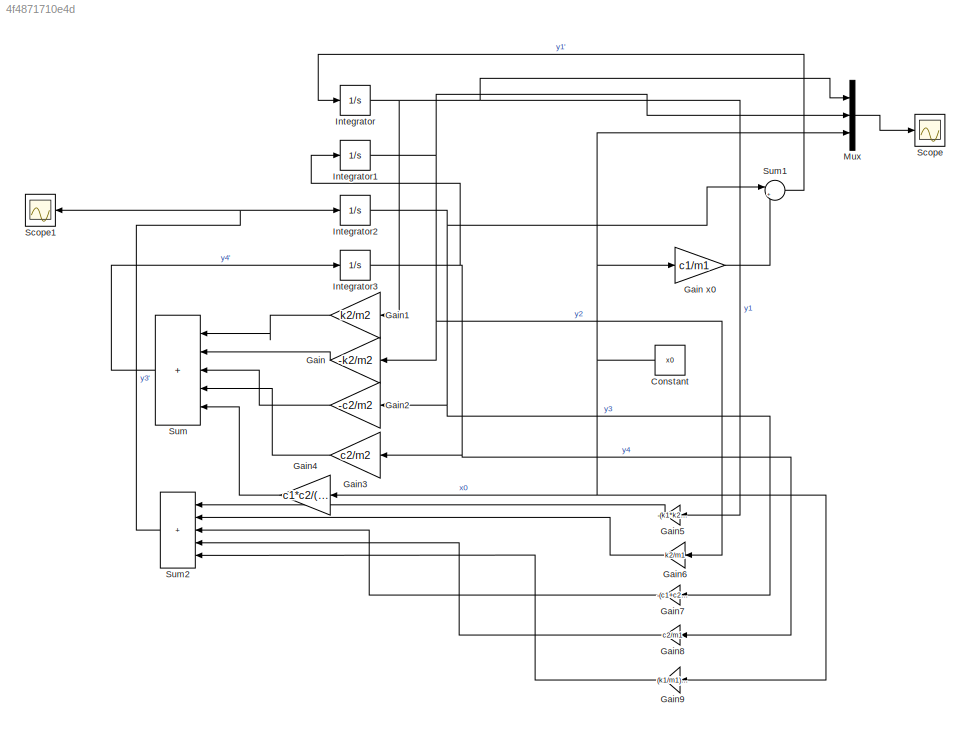
MODEL slx_4f4871710e4d
KIND model
CONFIG AbsTol = auto
CONFIG EnableMultiTasking = off
CONFIG FixedStep = auto
CONFIG MaxStep = auto
CONFIG MinStep = auto
CONFIG RelTol = 1e-3
CONFIG SampleTimeConstraint = Unconstrained
CONFIG SolverName = VariableStepAuto
CONFIG StartTime = 0.0
CONFIG StopTime = 10.0
BLOCK [Constant] Constant
  Value = x0
BLOCK [Gain] Gain
  Gain = -k2/m2
BLOCK [Gain] Gain x0
  Gain = c1/m1
BLOCK [Gain] Gain1
  Gain = k2/m2
BLOCK [Gain] Gain2
  Gain = -c2/m2
BLOCK [Gain] Gain3
  Gain = c2/m2
BLOCK [Gain] Gain4
  Gain = c1*c2/(m1*m2)
BLOCK [Gain] Gain5
  Gain = -(k1*k2)/m1
BLOCK [Gain] Gain6
  Gain = k2/m1
BLOCK [Gain] Gain7
  Gain = -(c1+c2)/m1
BLOCK [Gain] Gain8
  Gain = c2/m1
BLOCK [Gain] Gain9
  Gain = (k1/m1)-((c1+c2)*c1)/(m1*m1)
BLOCK [Integrator] Integrator
BLOCK [Integrator] Integrator1
BLOCK [Integrator] Integrator2
BLOCK [Integrator] Integrator3
BLOCK [Mux] Mux
  DisplayOption = bar
  Inputs = 3
BLOCK [Scope] Scope
  Floating = off
  NumInputPorts = 1
  ScopeSpecificationString = Simulink.scopes.TimeScopeBlockCfg('CurrentConfiguration', extmgr.ConfigurationSet(extmgr.Configuration('Core','General UI',true),extmgr.Configuration('Core','Source UI',true),extmgr.Configuration('Sources','WiredSimulink',true),extmgr.Configuration('Visuals','Time Domain',true,'SerializedDisplays',{struct('MinYLimReal','-2081719.73574','MaxYLimReal','1698680.17743','YLabelReal','','MinYLimMag','  ...<+1504ch>
BLOCK [Scope] Scope1
  Floating = off
  NumInputPorts = 1
  ScopeSpecificationString = Simulink.scopes.TimeScopeBlockCfg('CurrentConfiguration', extmgr.ConfigurationSet(extmgr.Configuration('Core','General UI',true),extmgr.Configuration('Core','Source UI',true),extmgr.Configuration('Sources','WiredSimulink',true,'DataLoggingVariableName','ScopeData1'),extmgr.Configuration('Visuals','Time Domain',true,'SerializedDisplays',{struct('MinYLimReal','-81594.25115','MaxYLimReal','81896.6758...<+1393ch>
BLOCK [Sum] Sum
  IconShape = rectangular
  Inputs = |+++++
BLOCK [Sum] Sum1
  Inputs = |++
BLOCK [Sum] Sum2
  IconShape = rectangular
  Inputs = |+++++
NET Constant:1 -> Gain x0:1, Gain4:1, Gain9:1, Mux:3
LINE Gain x0:1 -> Sum1:2
LINE Gain1:1 -> Sum:1
LINE Gain2:1 -> Sum:3
LINE Gain3:1 -> Sum:4
LINE Gain4:1 -> Sum:5
LINE Gain5:1 -> Sum2:1
LINE Gain6:1 -> Sum2:2
LINE Gain7:1 -> Sum2:3
LINE Gain8:1 -> Sum2:4
LINE Gain9:1 -> Sum2:5
LINE Gain:1 -> Sum:2
NET Integrator1:1 -> Gain6:1, Gain:1, Mux:2
NET Integrator2:1 -> Gain2:1, Gain7:1, Sum1:1
NET Integrator3:1 -> Gain3:1, Gain8:1, Integrator1:1
NET Integrator:1 -> Gain1:1, Gain5:1, Mux:1
LINE Mux:1 -> Scope:1
LINE Sum1:1 -> Integrator:1
NET Sum2:1 -> Integrator2:1, Scope1:1
LINE Sum:1 -> Integrator3:1
note: NET lines group one-source signal fan-out (src -> all destinations, sorted); 1:1 wires keep LINE
